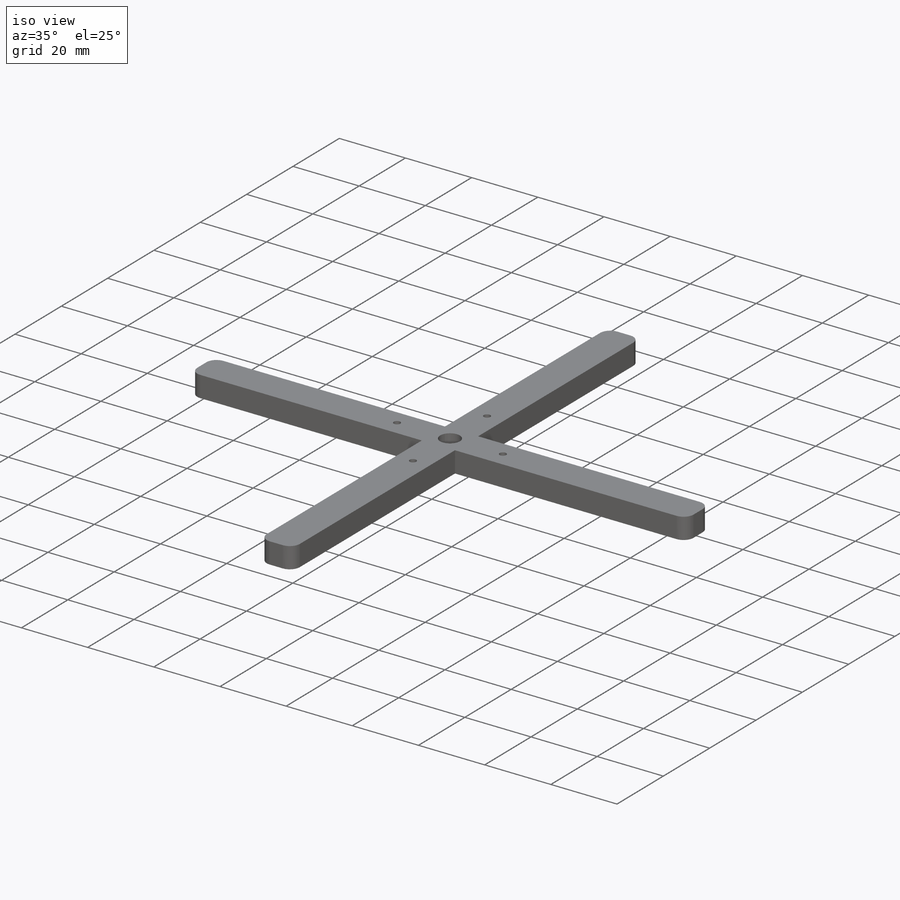
[diagram: iso view]
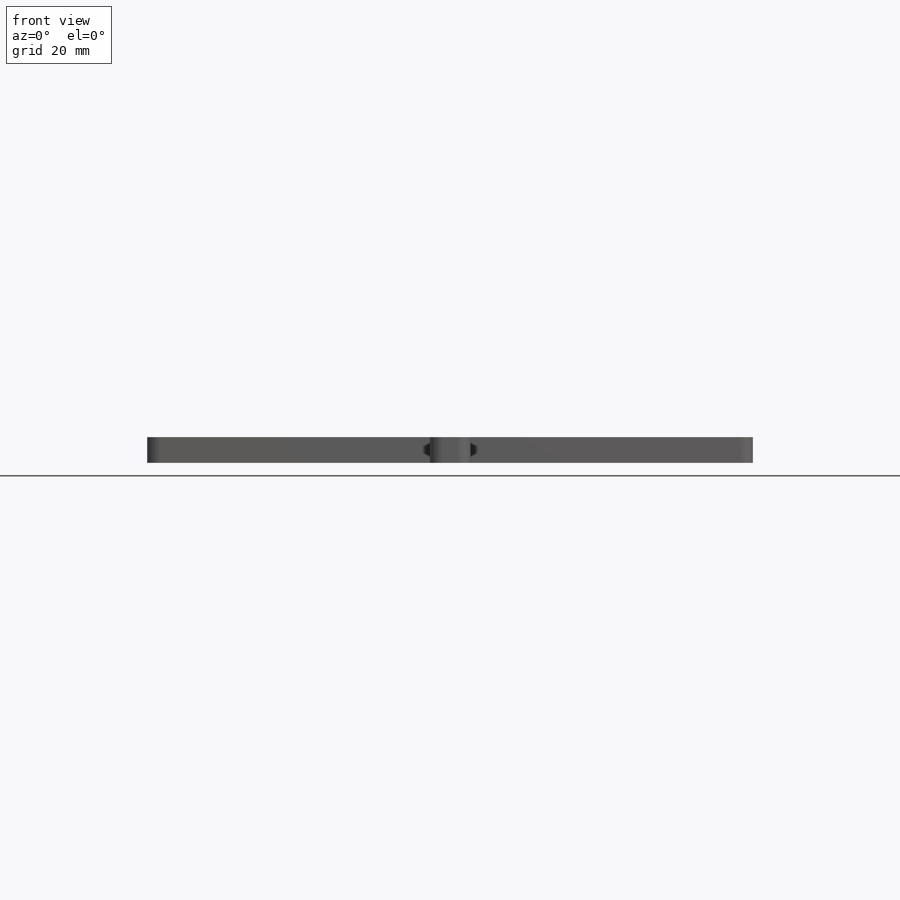
[diagram: front view]
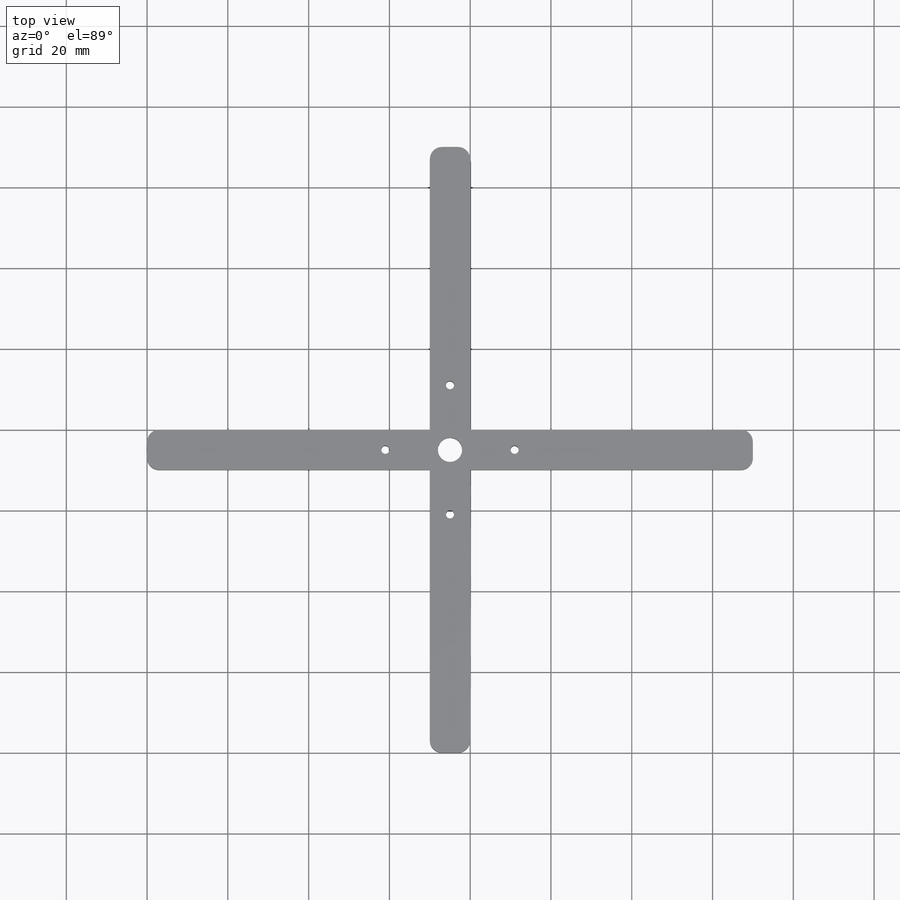
[diagram: top view]
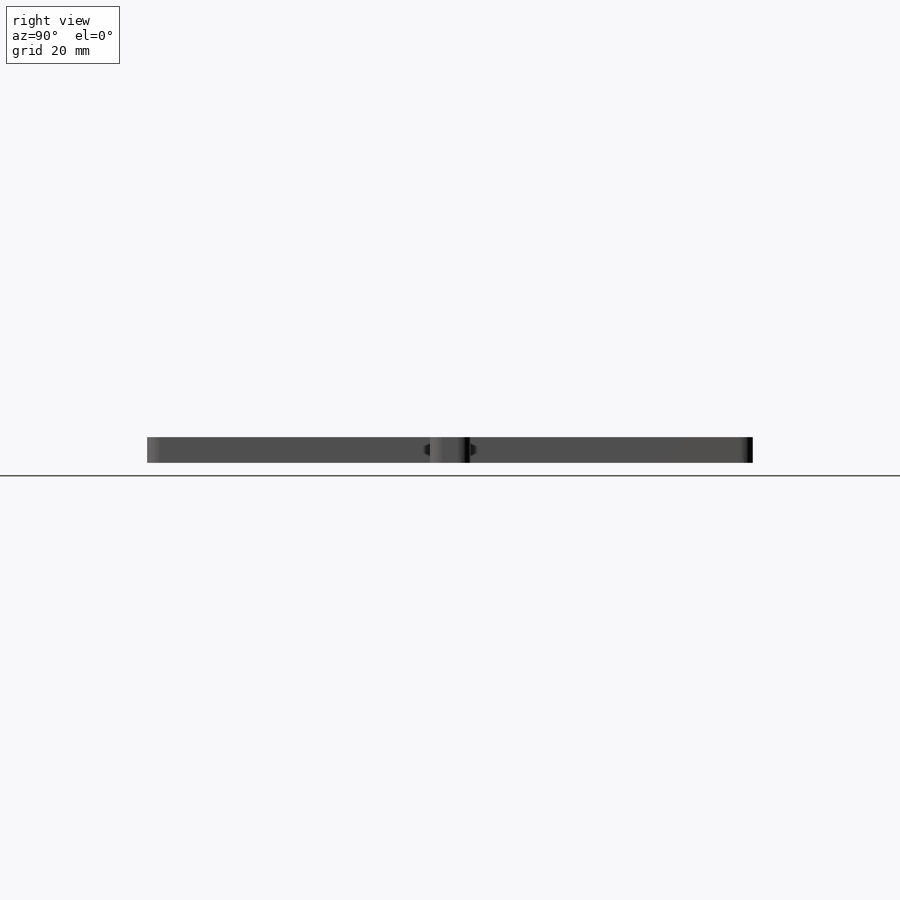
[diagram: right view]
SOLIDWORKS PART (.sldprt)
format: sldprt  version: not decoded by parser v0  size: 266,752 bytes
history: native  units: mm
features: sketch x5, thread x4, material x1, extrude x1, hole x1, fillet x1, cut_extrude x1 (+11 scaffold rows collapsed)
feature tree (25):
  scaffold x11  (default folders/planes/origin — collapsed)
  material  "Balsa"
  sketch  "Sketch1"  dims[D1=10.0mm D2=150.0mm]
  extrude  "main shape"  Depth=6.35mm
  sketch  "base X hole location"  dims[D1=32.0mm]
  hole  "base X holes"  Diameter=1.9939mm Depth=7.67mm
  sketch  "Sketch4"
  sketch  "Sketch3"  dims[hole-wizard template sketch: 47 standard entries collapsed; hole parameters kept: c15.Tap Drill Depth=7.67mm c15.D3=~14.816244mm c15.Drill Angle=118.0deg]
  thread  "Hole Thread1"  Diameter=5.03mm  [1 undecoded]
  thread  "Hole Thread2"  Diameter=5.03mm  [1 undecoded]
  thread  "Hole Thread3"  Diameter=5.03mm  [1 undecoded]
  thread  "Hole Thread4"  Diameter=5.03mm  [1 undecoded]
  fillet  "Fillet1"  Radius=3mm
  sketch  "Sketch5"  dims[D1=6.0mm D2=~3.897606mm]
  cut_extrude  "cutout for mounting screw"  [1 undecoded]
decode coverage: 11 of 13 modeling features carry decoded parameters
note: ~ marks probable driven/reference dimensions
note: 5 parameter values undecoded
note: suppression state not decoded; provenance and decode notes live in map.json
